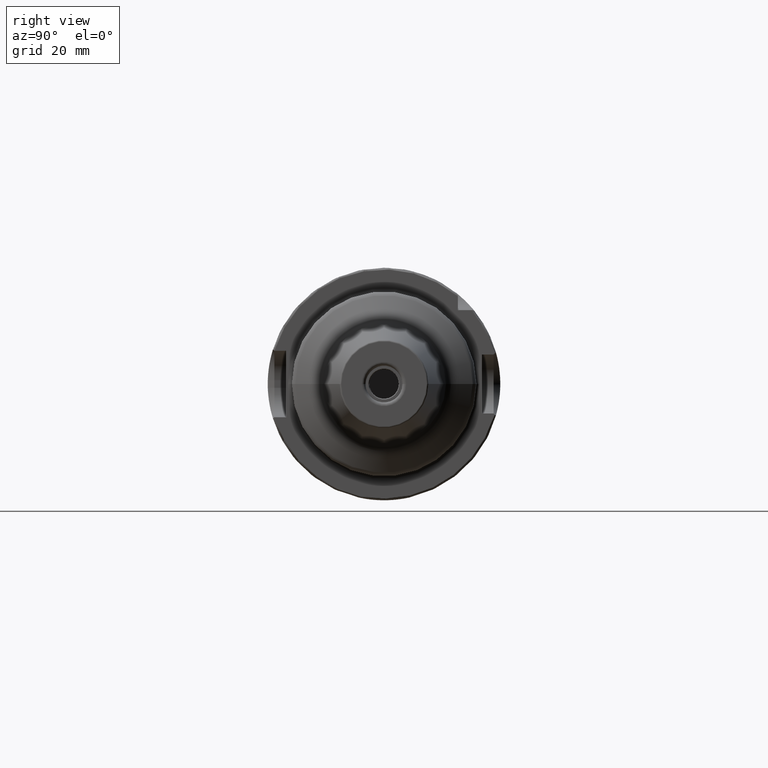
[diagram: clean part render]
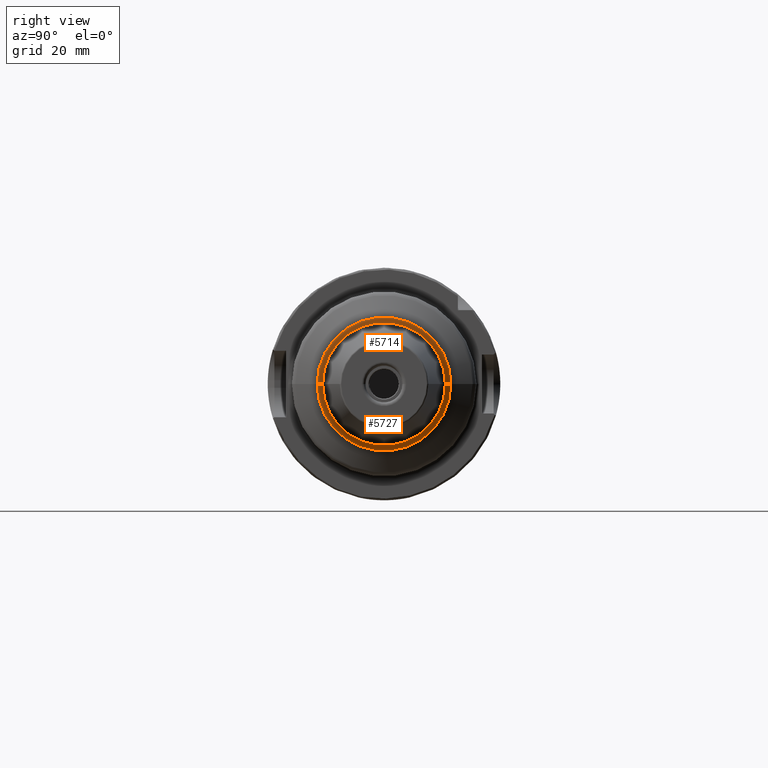
[diagram: same view with one multi-face feature highlighted, each face labeled with its STEP entity id]
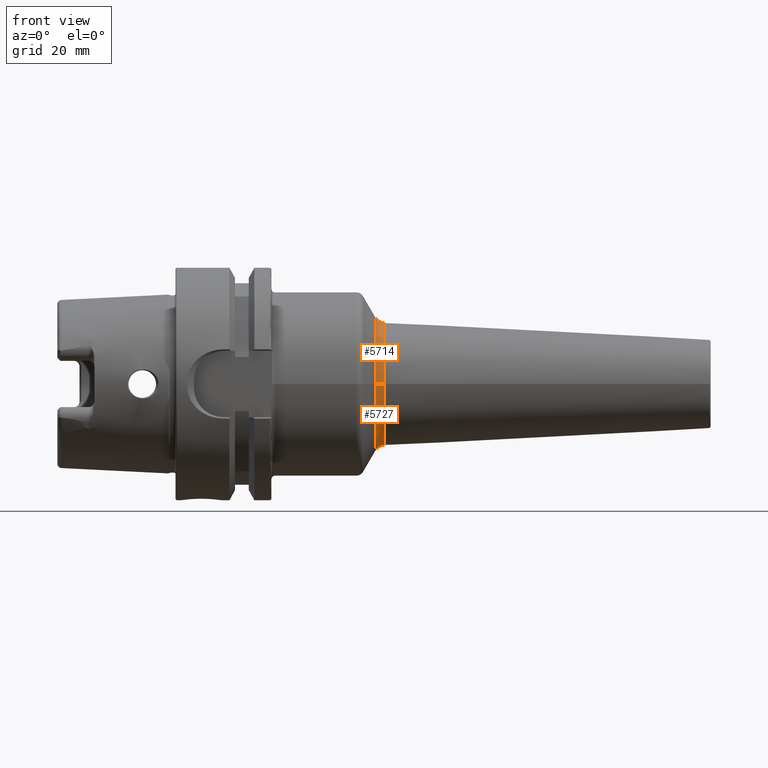
[diagram: same view with one multi-face feature highlighted, each face labeled with its STEP entity id]
A machine part, right view. The highlighted faces form ONE feature: a constant-radius fillet chain: 2 tangent blend faces with common blend radius 3 mm. The faces share edges in the B-rep.
A second angle (front view) of the same feature is appended — it is thin or edge-on in the first view.
Their STEP definitions:
[1] entity #5714 (Torus):
#2376=CARTESIAN_POINT('',(5.662663479316E1,0.E0,0.E0));
#2377=DIRECTION('',(1.E0,0.E0,0.E0));
#2378=DIRECTION('',(0.E0,1.E0,0.E0));
#2379=AXIS2_PLACEMENT_3D('',#2376,#2377,#2378);
#2381=CARTESIAN_POINT('',(5.678364266189E1,1.962734042252E1,0.E0));
#2382=DIRECTION('',(0.E0,0.E0,-1.E0));
#2383=DIRECTION('',(-5.233595624293E-2,-9.986295347546E-1,0.E0));
#2384=AXIS2_PLACEMENT_3D('',#2381,#2382,#2383);
#2386=CARTESIAN_POINT('',(5.678364266189E1,-1.962734042252E1,0.E0));
#2387=DIRECTION('',(0.E0,0.E0,1.E0));
#2388=DIRECTION('',(-5.233595624293E-2,9.986295347546E-1,0.E0));
#2389=AXIS2_PLACEMENT_3D('',#2386,#2387,#2388);
#2409=CARTESIAN_POINT('',(5.418556645054E1,0.E0,0.E0));
#2410=DIRECTION('',(1.E0,0.E0,0.E0));
#2411=DIRECTION('',(0.E0,1.E0,0.E0));
#2412=AXIS2_PLACEMENT_3D('',#2409,#2410,#2411);
#2920=CARTESIAN_POINT('',(5.662663479316E1,1.663145181826E1,0.E0));
#2921=VERTEX_POINT('',#2920);
#2922=CARTESIAN_POINT('',(5.418556645054E1,1.812734042252E1,0.E0));
#2923=VERTEX_POINT('',#2922);
#2952=CARTESIAN_POINT('',(5.662663479316E1,-1.663145181826E1,0.E0));
#2953=VERTEX_POINT('',#2952);
#2954=CARTESIAN_POINT('',(5.418556645054E1,-1.812734042252E1,0.E0));
#2955=VERTEX_POINT('',#2954);
#5700=CARTESIAN_POINT('',(5.678364266189E1,0.E0,0.E0));
#5701=DIRECTION('',(1.E0,0.E0,0.E0));
#5702=DIRECTION('',(0.E0,-1.E0,0.E0));
#5703=AXIS2_PLACEMENT_3D('',#5700,#5701,#5702);
#5704=TOROIDAL_SURFACE('',#5703,1.962734042252E1,3.E0);
#5706=ORIENTED_EDGE('',*,*,#5705,.F.);
#5707=ORIENTED_EDGE('',*,*,#5695,.T.);
#5709=ORIENTED_EDGE('',*,*,#5708,.T.);
#5711=ORIENTED_EDGE('',*,*,#5710,.F.);
#5712=EDGE_LOOP('',(#5706,#5707,#5709,#5711));
#5713=FACE_OUTER_BOUND('',#5712,.F.);
#5714=ADVANCED_FACE('',(#5713),#5704,.F.);
#2380=CIRCLE('',#2379,1.663145181826E1);
#2385=CIRCLE('',#2384,3.E0);
#2390=CIRCLE('',#2389,3.E0);
#2413=CIRCLE('',#2412,1.812734042252E1);
#5695=EDGE_CURVE('',#2921,#2953,#2380,.T.);
#5705=EDGE_CURVE('',#2921,#2923,#2385,.T.);
#5708=EDGE_CURVE('',#2953,#2955,#2390,.T.);
#5710=EDGE_CURVE('',#2923,#2955,#2413,.T.);
[2] entity #5727 (Torus):
#2381=CARTESIAN_POINT('',(5.678364266189E1,1.962734042252E1,0.E0));
#2382=DIRECTION('',(0.E0,0.E0,-1.E0));
#2383=DIRECTION('',(-5.233595624293E-2,-9.986295347546E-1,0.E0));
#2384=AXIS2_PLACEMENT_3D('',#2381,#2382,#2383);
#2386=CARTESIAN_POINT('',(5.678364266189E1,-1.962734042252E1,0.E0));
#2387=DIRECTION('',(0.E0,0.E0,1.E0));
#2388=DIRECTION('',(-5.233595624293E-2,9.986295347546E-1,0.E0));
#2389=AXIS2_PLACEMENT_3D('',#2386,#2387,#2388);
#2391=CARTESIAN_POINT('',(5.662663479316E1,0.E0,0.E0));
#2392=DIRECTION('',(-1.E0,0.E0,0.E0));
#2393=DIRECTION('',(0.E0,1.E0,0.E0));
#2394=AXIS2_PLACEMENT_3D('',#2391,#2392,#2393);
#2404=CARTESIAN_POINT('',(5.418556645054E1,0.E0,0.E0));
#2405=DIRECTION('',(-1.E0,0.E0,0.E0));
#2406=DIRECTION('',(0.E0,1.E0,0.E0));
#2407=AXIS2_PLACEMENT_3D('',#2404,#2405,#2406);
#2920=CARTESIAN_POINT('',(5.662663479316E1,1.663145181826E1,0.E0));
#2921=VERTEX_POINT('',#2920);
#2922=CARTESIAN_POINT('',(5.418556645054E1,1.812734042252E1,0.E0));
#2923=VERTEX_POINT('',#2922);
#2952=CARTESIAN_POINT('',(5.662663479316E1,-1.663145181826E1,0.E0));
#2953=VERTEX_POINT('',#2952);
#2954=CARTESIAN_POINT('',(5.418556645054E1,-1.812734042252E1,0.E0));
#2955=VERTEX_POINT('',#2954);
#5715=CARTESIAN_POINT('',(5.678364266189E1,0.E0,0.E0));
#5716=DIRECTION('',(1.E0,0.E0,0.E0));
#5717=DIRECTION('',(0.E0,-1.E0,0.E0));
#5718=AXIS2_PLACEMENT_3D('',#5715,#5716,#5717);
#5719=TOROIDAL_SURFACE('',#5718,1.962734042252E1,3.E0);
#5720=ORIENTED_EDGE('',*,*,#5705,.T.);
#5722=ORIENTED_EDGE('',*,*,#5721,.T.);
#5723=ORIENTED_EDGE('',*,*,#5708,.F.);
#5724=ORIENTED_EDGE('',*,*,#5679,.F.);
#5725=EDGE_LOOP('',(#5720,#5722,#5723,#5724));
#5726=FACE_OUTER_BOUND('',#5725,.F.);
#5727=ADVANCED_FACE('',(#5726),#5719,.F.);
#2385=CIRCLE('',#2384,3.E0);
#2390=CIRCLE('',#2389,3.E0);
#2395=CIRCLE('',#2394,1.663145181826E1);
#2408=CIRCLE('',#2407,1.812734042252E1);
#5679=EDGE_CURVE('',#2921,#2953,#2395,.T.);
#5705=EDGE_CURVE('',#2921,#2923,#2385,.T.);
#5708=EDGE_CURVE('',#2953,#2955,#2390,.T.);
#5721=EDGE_CURVE('',#2923,#2955,#2408,.T.);